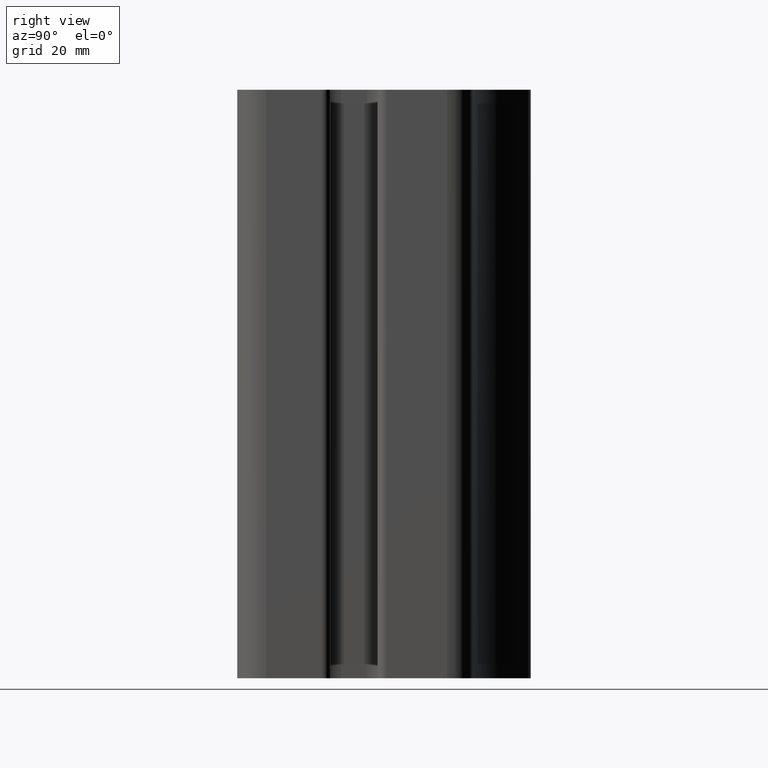
[diagram: clean part render]
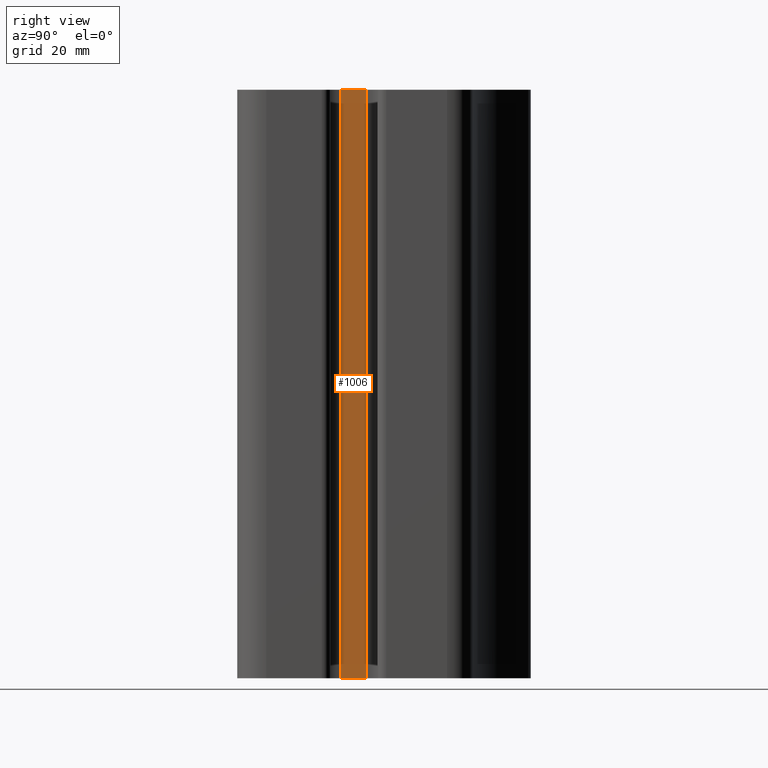
[diagram: same view with one face highlighted and labeled with its STEP entity id]
A machine part, right view. The second image highlights one B-rep face of the part: STEP entity #1006.
In plain terms, the highlighted planar face has unit normal (1, -0, 0).
Its self-contained STEP definition (entity closure, byte-faithful):
#32=PLANE('',#1101);
#68=FACE_OUTER_BOUND('',#121,.T.);
#121=EDGE_LOOP('',(#755,#756,#757,#758));
#201=LINE('',#1674,#279);
#202=LINE('',#1678,#280);
#203=LINE('',#1680,#281);
#204=LINE('',#1681,#282);
#279=VECTOR('',#1348,100.);
#280=VECTOR('',#1353,4.38611258250001);
#281=VECTOR('',#1354,100.);
#282=VECTOR('',#1355,4.38611258250001);
#441=VERTEX_POINT('',#1671);
#442=VERTEX_POINT('',#1673);
#443=VERTEX_POINT('',#1677);
#444=VERTEX_POINT('',#1679);
#572=EDGE_CURVE('',#441,#442,#201,.T.);
#574=EDGE_CURVE('',#441,#443,#202,.T.);
#575=EDGE_CURVE('',#443,#444,#203,.T.);
#576=EDGE_CURVE('',#442,#444,#204,.T.);
#755=ORIENTED_EDGE('',*,*,#574,.T.);
#756=ORIENTED_EDGE('',*,*,#575,.T.);
#757=ORIENTED_EDGE('',*,*,#576,.F.);
#758=ORIENTED_EDGE('',*,*,#572,.F.);
#1006=ADVANCED_FACE('',(#68),#32,.T.);
#1101=AXIS2_PLACEMENT_3D('',#1676,#1351,#1352);
#1348=DIRECTION('',(0.,0.,1.));
#1351=DIRECTION('center_axis',(0.999999999999997,-7.3139973E-8,0.));
#1352=DIRECTION('ref_axis',(0.,0.,-1.));
#1353=DIRECTION('',(7.31399728791574E-8,0.999999999999997,0.));
#1354=DIRECTION('',(0.,0.,1.));
#1355=DIRECTION('',(7.31399728791574E-8,0.999999999999997,0.));
#1671=CARTESIAN_POINT('',(10.7110054475611,-6.76028512359824,0.));
#1673=CARTESIAN_POINT('',(10.7110054475611,-6.76028512359824,100.));
#1674=CARTESIAN_POINT('',(10.7110054475611,-6.76028512359824,0.));
#1676=CARTESIAN_POINT('Origin',(10.7110054475611,-6.76028512359824,0.));
#1677=CARTESIAN_POINT('',(10.7110057683613,-2.37417254109823,0.));
#1678=CARTESIAN_POINT('',(10.7110054475611,-6.76028512359824,0.));
#1679=CARTESIAN_POINT('',(10.7110057683613,-2.37417254109823,100.));
#1680=CARTESIAN_POINT('',(10.7110057683613,-2.37417254109823,0.));
#1681=CARTESIAN_POINT('',(10.7110054475611,-6.76028512359824,100.));